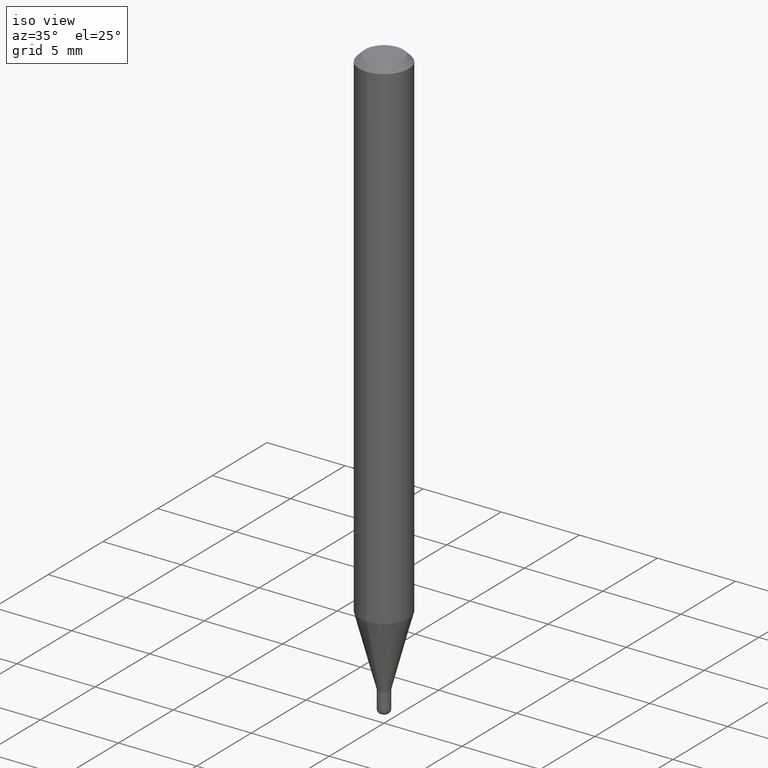
[diagram: clean part render]
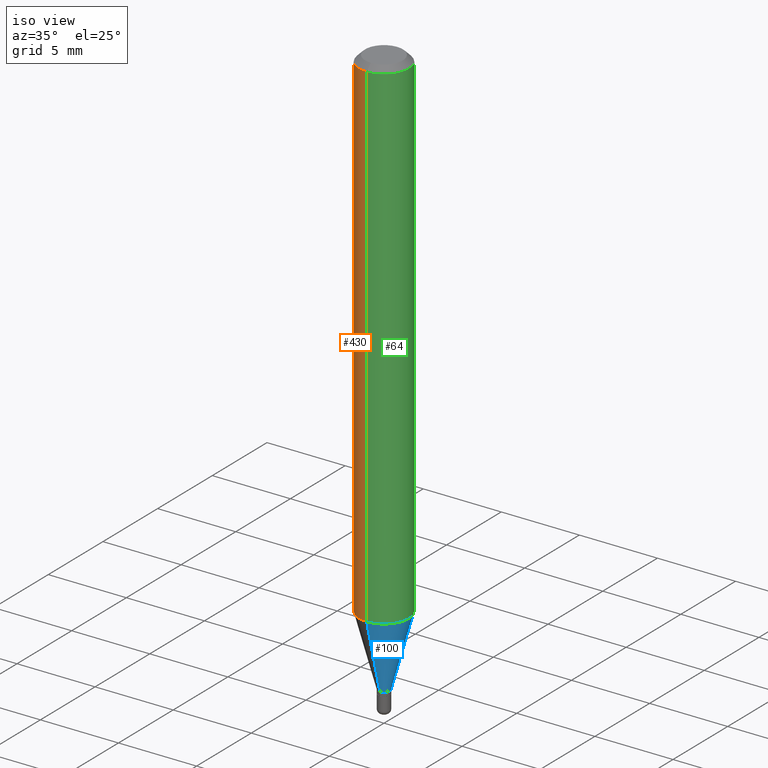
[diagram: same view with three faces highlighted in distinct colors, each labeled with its STEP entity id]
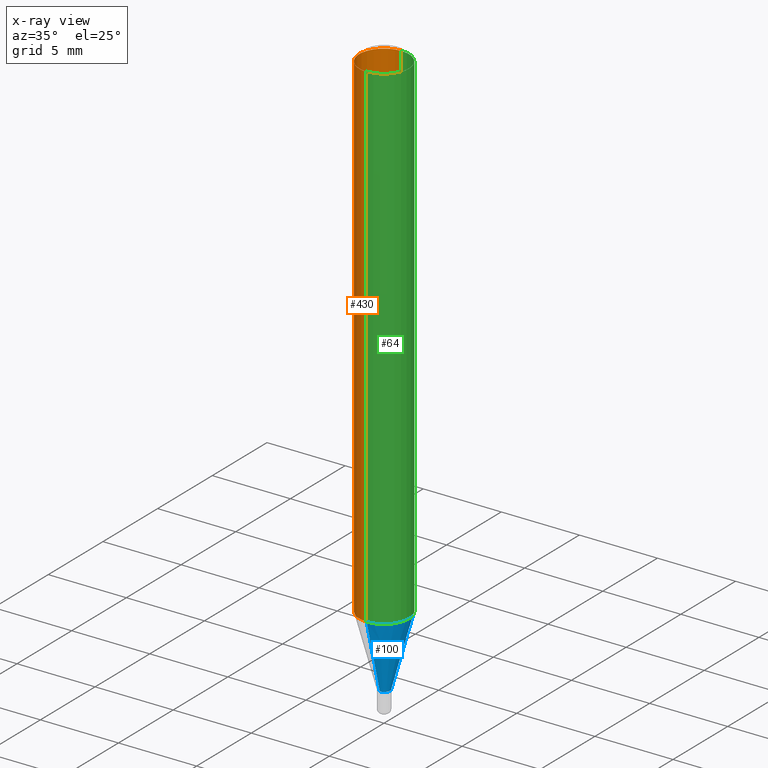
[diagram: x-ray of the same camera — body ghosted, the three highlighted faces saturated]
A machine part, iso view with three faces highlighted in distinct colors.
The next image is the same camera in x-ray (body ghosted, the three faces saturated) — at least one of them is partly hidden behind the body in this view.
Their STEP definitions:

[orange] entity #430 — the highlighted cylindrical surface (edge-blend (fillet) strip) has radius 1.5875 mm, axis along (-0, 0, 1).
#9 = VECTOR ( 'NONE', #149, 39.37007874015748143 ) ;
#28 = CIRCLE ( 'NONE', #206, 0.06250000000000000000 ) ;
#35 = DIRECTION ( 'NONE',  ( -6.982962677686265922E-15, -1.000000000000000000, 3.483106191921935554E-15 ) ) ;
#43 = DIRECTION ( 'NONE',  ( -2.445486429573083164E-29, 3.491456101148545241E-15, 1.000000000000000000 ) ) ;
#44 = CARTESIAN_POINT ( 'NONE',  ( 3.668229644359552001E-31, -5.237184151722713929E-17, -0.01499999999999970281 ) ) ;
#47 = VERTEX_POINT ( 'NONE', #196 ) ;
#126 = DIRECTION ( 'NONE',  ( -6.982962677686265922E-15, -1.000000000000000000, 4.370956789862821150E-15 ) ) ;
#128 = VERTEX_POINT ( 'NONE', #518 ) ;
#131 = EDGE_LOOP ( 'NONE', ( #303, #146, #414, #459 ) ) ;
#146 = ORIENTED_EDGE ( 'NONE', *, *, #301, .T. ) ;
#149 = DIRECTION ( 'NONE',  ( -2.445486429573082884E-29, 3.491456101148545241E-15, 1.000000000000000000 ) ) ;
#172 = CIRCLE ( 'NONE', #385, 0.06250000000000000000 ) ;
#196 = CARTESIAN_POINT ( 'NONE',  ( 4.440892098500932831E-16, 0.06249999999999555911, -1.267727586640479132 ) ) ;
#203 = EDGE_CURVE ( 'NONE', #128, #451, #393, .T. ) ;
#206 = AXIS2_PLACEMENT_3D ( 'NONE', #44, #43, #35 ) ;
#207 = DIRECTION ( 'NONE',  ( -2.445486429573083164E-29, 3.491456101148545241E-15, 1.000000000000000000 ) ) ;
#213 = AXIS2_PLACEMENT_3D ( 'NONE', #307, #256, #223 ) ;
#223 = DIRECTION ( 'NONE',  ( -6.982962677686265922E-15, -1.000000000000000000, 3.491456101148544846E-15 ) ) ;
#254 = DIRECTION ( 'NONE',  ( -2.445486429573082884E-29, 3.491456101148545241E-15, 1.000000000000000000 ) ) ;
#256 = DIRECTION ( 'NONE',  ( -2.445486429573083164E-29, 3.491456101148545241E-15, 1.000000000000000000 ) ) ;
#288 = CARTESIAN_POINT ( 'NONE',  ( -4.364351673553916201E-16, -0.06250000000000000000, 2.182160063217840529E-16 ) ) ;
#301 = EDGE_CURVE ( 'NONE', #47, #128, #172, .T. ) ;
#303 = ORIENTED_EDGE ( 'NONE', *, *, #329, .F. ) ;
#307 = CARTESIAN_POINT ( 'NONE',  ( 0.000000000000000000, 0.000000000000000000, 0.000000000000000000 ) ) ;
#312 = EDGE_CURVE ( 'NONE', #461, #451, #28, .T. ) ;
#329 = EDGE_CURVE ( 'NONE', #47, #461, #514, .T. ) ;
#336 = CARTESIAN_POINT ( 'NONE',  ( -4.364351673553912750E-16, -0.06250000000000005551, -0.01499999999999948597 ) ) ;
#344 = CARTESIAN_POINT ( 'NONE',  ( 4.440892098500937762E-16, 0.06249999999999993755, -0.01499999999999992138 ) ) ;
#363 = CARTESIAN_POINT ( 'NONE',  ( 4.440892098500625669E-16, 0.06250000000000000000, -2.182160063217840529E-16 ) ) ;
#385 = AXIS2_PLACEMENT_3D ( 'NONE', #482, #207, #126 ) ;
#393 = LINE ( 'NONE', #288, #9 ) ;
#414 = ORIENTED_EDGE ( 'NONE', *, *, #203, .T. ) ;
#416 = FACE_OUTER_BOUND ( 'NONE', #131, .T. ) ;
#422 = CYLINDRICAL_SURFACE ( 'NONE', #213, 0.06250000000000000000 ) ;
#430 = ADVANCED_FACE ( 'NONE', ( #416 ), #422, .T. ) ;
#435 = VECTOR ( 'NONE', #254, 39.37007874015748143 ) ;
#451 = VERTEX_POINT ( 'NONE', #336 ) ;
#459 = ORIENTED_EDGE ( 'NONE', *, *, #312, .F. ) ;
#461 = VERTEX_POINT ( 'NONE', #344 ) ;
#482 = CARTESIAN_POINT ( 'NONE',  ( 3.100210609524725780E-29, -4.426215216970220777E-15, -1.267727586640478687 ) ) ;
#514 = LINE ( 'NONE', #363, #435 ) ;
#518 = CARTESIAN_POINT ( 'NONE',  ( -4.364351673553607559E-16, -0.06250000000000444089, -1.267727586640478465 ) ) ;

[blue] entity #100 — the highlighted conical surface has half-angle 15 deg.
#3 = AXIS2_PLACEMENT_3D ( 'NONE', #233, #388, #23 ) ;
#15 = DIRECTION ( 'NONE',  ( -1.807323732225323828E-15, -0.2588190451025172978, 0.9659258262890690894 ) ) ;
#23 = DIRECTION ( 'NONE',  ( -6.982962677686265922E-15, -1.000000000000000000, 4.370956789862821150E-15 ) ) ;
#30 = LINE ( 'NONE', #397, #500 ) ;
#38 = AXIS2_PLACEMENT_3D ( 'NONE', #465, #113, #509 ) ;
#42 = FACE_OUTER_BOUND ( 'NONE', #322, .T. ) ;
#47 = VERTEX_POINT ( 'NONE', #196 ) ;
#68 = DIRECTION ( 'NONE',  ( 1.839019923739594004E-15, 0.2588190451025240701, 0.9659258262890673130 ) ) ;
#91 = CARTESIAN_POINT ( 'NONE',  ( -1.047444401652589802E-16, -0.01500000000000509086, -1.445000000000000284 ) ) ;
#100 = ADVANCED_FACE ( 'NONE', ( #42 ), #318, .T. ) ;
#110 = ORIENTED_EDGE ( 'NONE', *, *, #247, .T. ) ;
#113 = DIRECTION ( 'NONE',  ( -2.445486429573083164E-29, 3.491456101148545241E-15, 1.000000000000000000 ) ) ;
#128 = VERTEX_POINT ( 'NONE', #518 ) ;
#129 = CARTESIAN_POINT ( 'NONE',  ( -1.047444401652589802E-16, -0.01500000000000509086, -1.445000000000000284 ) ) ;
#189 = EDGE_CURVE ( 'NONE', #466, #334, #362, .T. ) ;
#196 = CARTESIAN_POINT ( 'NONE',  ( 4.440892098500932831E-16, 0.06249999999999555911, -1.267727586640479132 ) ) ;
#199 = ORIENTED_EDGE ( 'NONE', *, *, #268, .F. ) ;
#233 = CARTESIAN_POINT ( 'NONE',  ( 3.100210609524725780E-29, -4.426215216970220777E-15, -1.267727586640478687 ) ) ;
#247 = EDGE_CURVE ( 'NONE', #334, #47, #30, .T. ) ;
#268 = EDGE_CURVE ( 'NONE', #128, #47, #332, .T. ) ;
#274 = AXIS2_PLACEMENT_3D ( 'NONE', #331, #400, #513 ) ;
#311 = VECTOR ( 'NONE', #15, 39.37007874015748854 ) ;
#318 = CONICAL_SURFACE ( 'NONE', #274, 0.01500000000000004455, 0.2617993877991494078 ) ;
#322 = EDGE_LOOP ( 'NONE', ( #382, #110, #199, #418 ) ) ;
#331 = CARTESIAN_POINT ( 'NONE',  ( 3.533727890733106107E-29, -5.045154066159648808E-15, -1.445000000000000284 ) ) ;
#332 = CIRCLE ( 'NONE', #3, 0.06250000000000000000 ) ;
#334 = VERTEX_POINT ( 'NONE', #408 ) ;
#362 = CIRCLE ( 'NONE', #38, 0.01500000000000004455 ) ;
#382 = ORIENTED_EDGE ( 'NONE', *, *, #189, .T. ) ;
#388 = DIRECTION ( 'NONE',  ( -2.445486429573083164E-29, 3.491456101148545241E-15, 1.000000000000000000 ) ) ;
#397 = CARTESIAN_POINT ( 'NONE',  ( 1.065814103640506706E-16, 0.01499999999999499997, -1.445000000000000284 ) ) ;
#399 = EDGE_CURVE ( 'NONE', #466, #128, #443, .T. ) ;
#400 = DIRECTION ( 'NONE',  ( -2.445486429573083164E-29, 3.491456101148545241E-15, 1.000000000000000000 ) ) ;
#408 = CARTESIAN_POINT ( 'NONE',  ( 2.753353101070722973E-16, 0.01499999999999500171, -1.445000000000000284 ) ) ;
#418 = ORIENTED_EDGE ( 'NONE', *, *, #399, .F. ) ;
#443 = LINE ( 'NONE', #91, #311 ) ;
#465 = CARTESIAN_POINT ( 'NONE',  ( 3.533727890733106107E-29, -5.045154066159648808E-15, -1.445000000000000284 ) ) ;
#466 = VERTEX_POINT ( 'NONE', #129 ) ;
#500 = VECTOR ( 'NONE', #68, 39.37007874015748854 ) ;
#509 = DIRECTION ( 'NONE',  ( -6.982962677686266711E-15, -1.000000000000000000, 0.000000000000000000 ) ) ;
#513 = DIRECTION ( 'NONE',  ( -6.982962677686266711E-15, -1.000000000000000000, 0.000000000000000000 ) ) ;
#518 = CARTESIAN_POINT ( 'NONE',  ( -4.364351673553607559E-16, -0.06250000000000444089, -1.267727586640478465 ) ) ;

[green] entity #64 — the highlighted cylindrical surface (edge-blend (fillet) strip) has radius 1.5875 mm, axis along (-0, 0, 1).
#2 = DIRECTION ( 'NONE',  ( -2.445486429573083164E-29, 3.491456101148545241E-15, 1.000000000000000000 ) ) ;
#3 = AXIS2_PLACEMENT_3D ( 'NONE', #233, #388, #23 ) ;
#9 = VECTOR ( 'NONE', #149, 39.37007874015748143 ) ;
#19 = DIRECTION ( 'NONE',  ( -2.445486429573083164E-29, 3.491456101148545241E-15, 1.000000000000000000 ) ) ;
#23 = DIRECTION ( 'NONE',  ( -6.982962677686265922E-15, -1.000000000000000000, 4.370956789862821150E-15 ) ) ;
#47 = VERTEX_POINT ( 'NONE', #196 ) ;
#58 = CARTESIAN_POINT ( 'NONE',  ( 3.668229644359552001E-31, -5.237184151722713929E-17, -0.01499999999999970281 ) ) ;
#64 = ADVANCED_FACE ( 'NONE', ( #81 ), #249, .T. ) ;
#81 = FACE_OUTER_BOUND ( 'NONE', #272, .T. ) ;
#116 = AXIS2_PLACEMENT_3D ( 'NONE', #58, #19, #299 ) ;
#128 = VERTEX_POINT ( 'NONE', #518 ) ;
#138 = ORIENTED_EDGE ( 'NONE', *, *, #497, .F. ) ;
#149 = DIRECTION ( 'NONE',  ( -2.445486429573082884E-29, 3.491456101148545241E-15, 1.000000000000000000 ) ) ;
#163 = DIRECTION ( 'NONE',  ( -6.982962677686265922E-15, -1.000000000000000000, 3.491456101148544846E-15 ) ) ;
#187 = CIRCLE ( 'NONE', #116, 0.06250000000000000000 ) ;
#196 = CARTESIAN_POINT ( 'NONE',  ( 4.440892098500932831E-16, 0.06249999999999555911, -1.267727586640479132 ) ) ;
#203 = EDGE_CURVE ( 'NONE', #128, #451, #393, .T. ) ;
#233 = CARTESIAN_POINT ( 'NONE',  ( 3.100210609524725780E-29, -4.426215216970220777E-15, -1.267727586640478687 ) ) ;
#249 = CYLINDRICAL_SURFACE ( 'NONE', #498, 0.06250000000000000000 ) ;
#254 = DIRECTION ( 'NONE',  ( -2.445486429573082884E-29, 3.491456101148545241E-15, 1.000000000000000000 ) ) ;
#268 = EDGE_CURVE ( 'NONE', #128, #47, #332, .T. ) ;
#272 = EDGE_LOOP ( 'NONE', ( #484, #390, #138, #455 ) ) ;
#288 = CARTESIAN_POINT ( 'NONE',  ( -4.364351673553916201E-16, -0.06250000000000000000, 2.182160063217840529E-16 ) ) ;
#299 = DIRECTION ( 'NONE',  ( -6.982962677686265922E-15, -1.000000000000000000, 3.483106191921935554E-15 ) ) ;
#329 = EDGE_CURVE ( 'NONE', #47, #461, #514, .T. ) ;
#332 = CIRCLE ( 'NONE', #3, 0.06250000000000000000 ) ;
#336 = CARTESIAN_POINT ( 'NONE',  ( -4.364351673553912750E-16, -0.06250000000000005551, -0.01499999999999948597 ) ) ;
#344 = CARTESIAN_POINT ( 'NONE',  ( 4.440892098500937762E-16, 0.06249999999999993755, -0.01499999999999992138 ) ) ;
#363 = CARTESIAN_POINT ( 'NONE',  ( 4.440892098500625669E-16, 0.06250000000000000000, -2.182160063217840529E-16 ) ) ;
#368 = CARTESIAN_POINT ( 'NONE',  ( 0.000000000000000000, 0.000000000000000000, 0.000000000000000000 ) ) ;
#388 = DIRECTION ( 'NONE',  ( -2.445486429573083164E-29, 3.491456101148545241E-15, 1.000000000000000000 ) ) ;
#390 = ORIENTED_EDGE ( 'NONE', *, *, #329, .T. ) ;
#393 = LINE ( 'NONE', #288, #9 ) ;
#435 = VECTOR ( 'NONE', #254, 39.37007874015748143 ) ;
#451 = VERTEX_POINT ( 'NONE', #336 ) ;
#455 = ORIENTED_EDGE ( 'NONE', *, *, #203, .F. ) ;
#461 = VERTEX_POINT ( 'NONE', #344 ) ;
#484 = ORIENTED_EDGE ( 'NONE', *, *, #268, .T. ) ;
#497 = EDGE_CURVE ( 'NONE', #451, #461, #187, .T. ) ;
#498 = AXIS2_PLACEMENT_3D ( 'NONE', #368, #2, #163 ) ;
#514 = LINE ( 'NONE', #363, #435 ) ;
#518 = CARTESIAN_POINT ( 'NONE',  ( -4.364351673553607559E-16, -0.06250000000000444089, -1.267727586640478465 ) ) ;